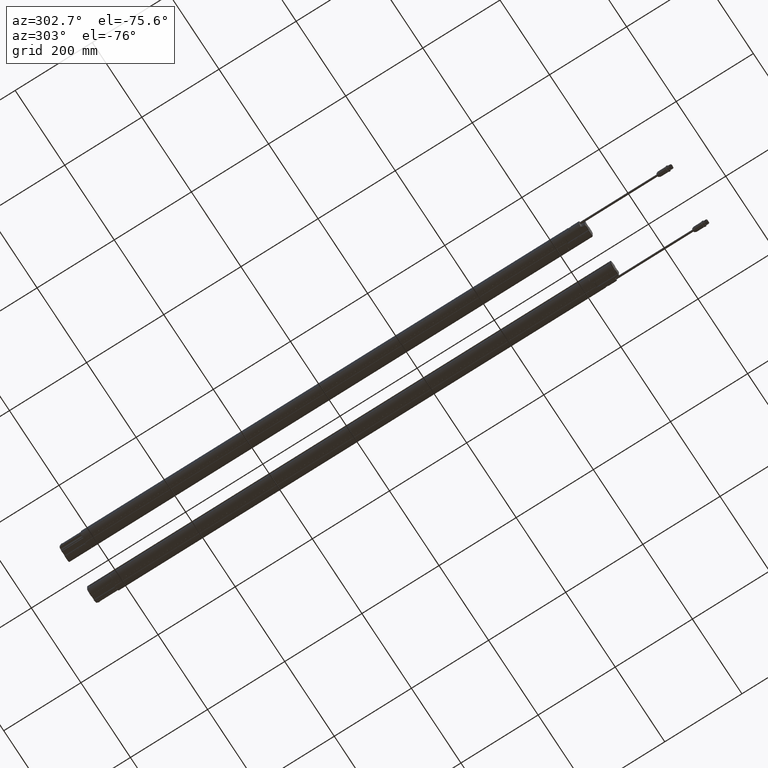
[diagram: clean part render]
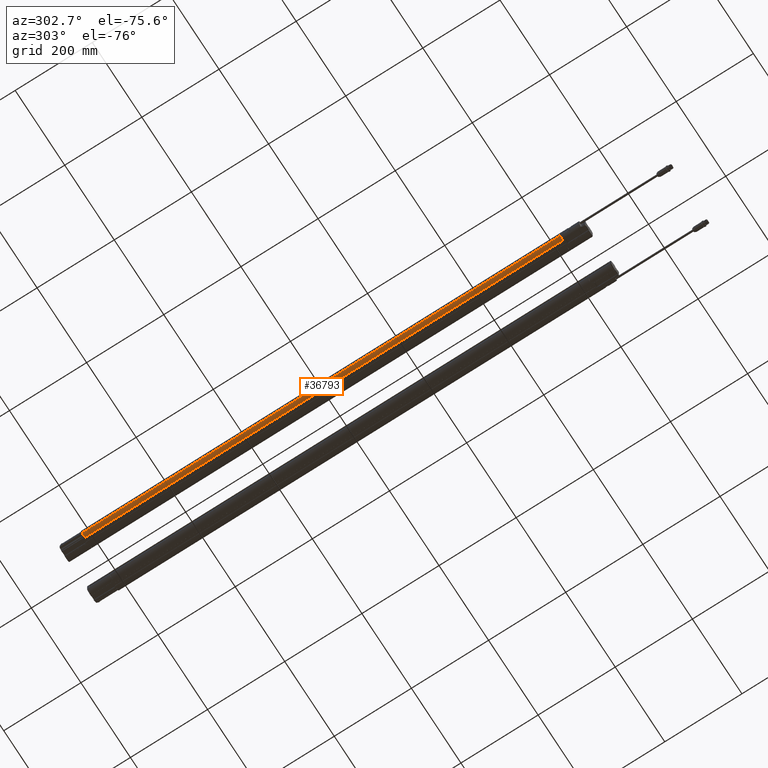
[diagram: same view with one face highlighted and labeled with its STEP entity id]
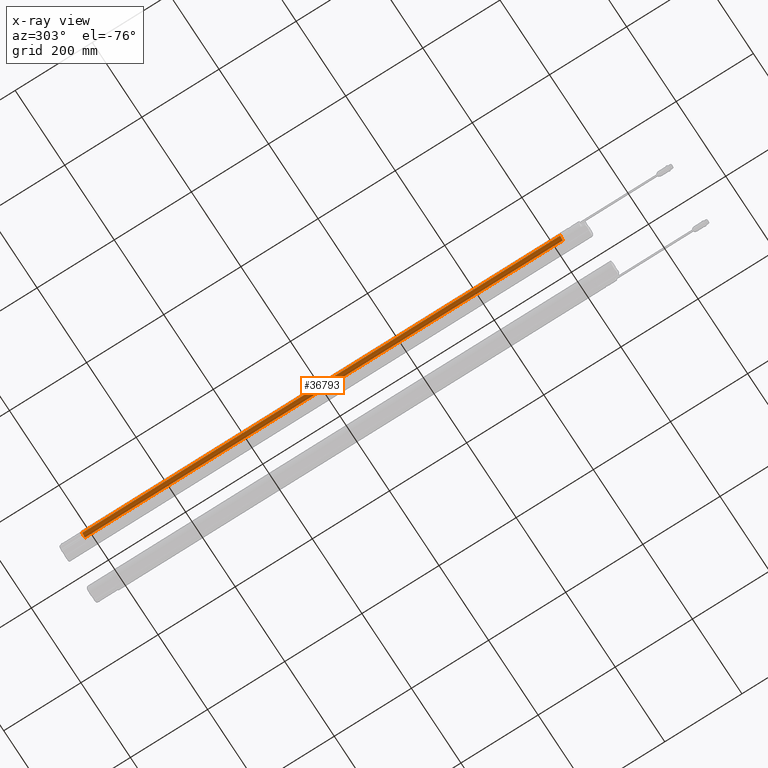
[diagram: x-ray of the same camera — body ghosted, the highlighted face saturated]
A machine part, auxiliary view. The second image highlights one B-rep face of the part: STEP entity #36793.
The next image is the same camera in x-ray: the body ghosted, the highlighted face saturated — about 0% of this face is hidden behind the body in this view.
In plain terms, the highlighted cylindrical surface (edge-blend (fillet) strip) has radius 20 mm, axis along (0, -1, 0).
Its self-contained STEP definition (entity closure, byte-faithful):
#1202 = ORIENTED_EDGE ( 'NONE', *, *, #9358, .F. ) ;
#9358 = EDGE_CURVE ( 'NONE', #75264, #48952, #83884, .T. ) ;
#9489 = DIRECTION ( 'NONE',  ( 0.000000000000000000, -1.000000000000000000, 0.000000000000000000 ) ) ;
#14729 = CARTESIAN_POINT ( 'NONE',  ( -2.993108301093949208, 105.5314982283464644, -0.4733823106459386088 ) ) ;
#19163 = VERTEX_POINT ( 'NONE', #33555 ) ;
#23489 = DIRECTION ( 'NONE',  ( 0.000000000000000000, 0.000000000000000000, -1.000000000000000000 ) ) ;
#23796 = ORIENTED_EDGE ( 'NONE', *, *, #95582, .F. ) ;
#24348 = CARTESIAN_POINT ( 'NONE',  ( -2.563741564821570673, 24.38976377970968556, -0.6888609175923778860 ) ) ;
#25541 = EDGE_CURVE ( 'NONE', #30261, #19163, #80441, .T. ) ;
#30261 = VERTEX_POINT ( 'NONE', #24348 ) ;
#32228 = CIRCLE ( 'NONE', #88308, 0.7874015748031496509 ) ;
#32272 = ORIENTED_EDGE ( 'NONE', *, *, #85078, .F. ) ;
#32706 = FACE_OUTER_BOUND ( 'NONE', #54353, .T. ) ;
#33555 = CARTESIAN_POINT ( 'NONE',  ( -2.563741369282034999, -24.38976377762558911, -0.6888596261230532924 ) ) ;
#36793 = ADVANCED_FACE ( 'NONE', ( #32706 ), #95678, .T. ) ;
#40982 = DIRECTION ( 'NONE',  ( 0.000000000000000000, 0.000000000000000000, -1.000000000000000000 ) ) ;
#41030 = CARTESIAN_POINT ( 'NONE',  ( -2.442082008853827091, 24.38976377952756280, 0.08908659095011436935 ) ) ;
#41251 = CARTESIAN_POINT ( 'NONE',  ( -2.563750379481327446, 105.5314982283464644, -0.6888581677515867030 ) ) ;
#41848 = ORIENTED_EDGE ( 'NONE', *, *, #25541, .T. ) ;
#46200 = DIRECTION ( 'NONE',  ( 0.000000000000000000, -1.000000000000000000, 9.330999788449910017E-16 ) ) ;
#48952 = VERTEX_POINT ( 'NONE', #81183 ) ;
#49057 = VECTOR ( 'NONE', #79929, 39.37007874015748143 ) ;
#50940 = VECTOR ( 'NONE', #46200, 39.37007874015748143 ) ;
#53282 = DIRECTION ( 'NONE',  ( 0.000000000000000000, 0.000000000000000000, -1.000000000000000000 ) ) ;
#54353 = EDGE_LOOP ( 'NONE', ( #23796, #1202, #32272, #41848 ) ) ;
#70931 = CARTESIAN_POINT ( 'NONE',  ( -2.442082008853827091, 105.5314982283464644, 0.08908659095003856887 ) ) ;
#71944 = CIRCLE ( 'NONE', #75154, 0.7874015748031497619 ) ;
#72768 = CARTESIAN_POINT ( 'NONE',  ( -2.993108301093949208, 24.38976377952756280, -0.4733823106458630026 ) ) ;
#75154 = AXIS2_PLACEMENT_3D ( 'NONE', #99216, #92491, #53282 ) ;
#75264 = VERTEX_POINT ( 'NONE', #72768 ) ;
#79929 = DIRECTION ( 'NONE',  ( 0.000000000000000000, -1.000000000000000000, 9.330999788449910017E-16 ) ) ;
#80441 = LINE ( 'NONE', #41251, #49057 ) ;
#81183 = CARTESIAN_POINT ( 'NONE',  ( -2.993108301093949208, -24.38976377952756280, -0.4733823106458173724 ) ) ;
#83884 = LINE ( 'NONE', #14729, #50940 ) ;
#85078 = EDGE_CURVE ( 'NONE', #30261, #75264, #32228, .T. ) ;
#86419 = DIRECTION ( 'NONE',  ( 0.000000000000000000, 1.000000000000000000, 0.000000000000000000 ) ) ;
#88308 = AXIS2_PLACEMENT_3D ( 'NONE', #41030, #86419, #23489 ) ;
#92491 = DIRECTION ( 'NONE',  ( 0.000000000000000000, -1.000000000000000000, 0.000000000000000000 ) ) ;
#95582 = EDGE_CURVE ( 'NONE', #48952, #19163, #71944, .T. ) ;
#95678 = CYLINDRICAL_SURFACE ( 'NONE', #97652, 0.7874015748031496509 ) ;
#97652 = AXIS2_PLACEMENT_3D ( 'NONE', #70931, #9489, #40982 ) ;
#99216 = CARTESIAN_POINT ( 'NONE',  ( -2.442082008853827091, -24.38976377952756280, 0.08908659095015983298 ) ) ;